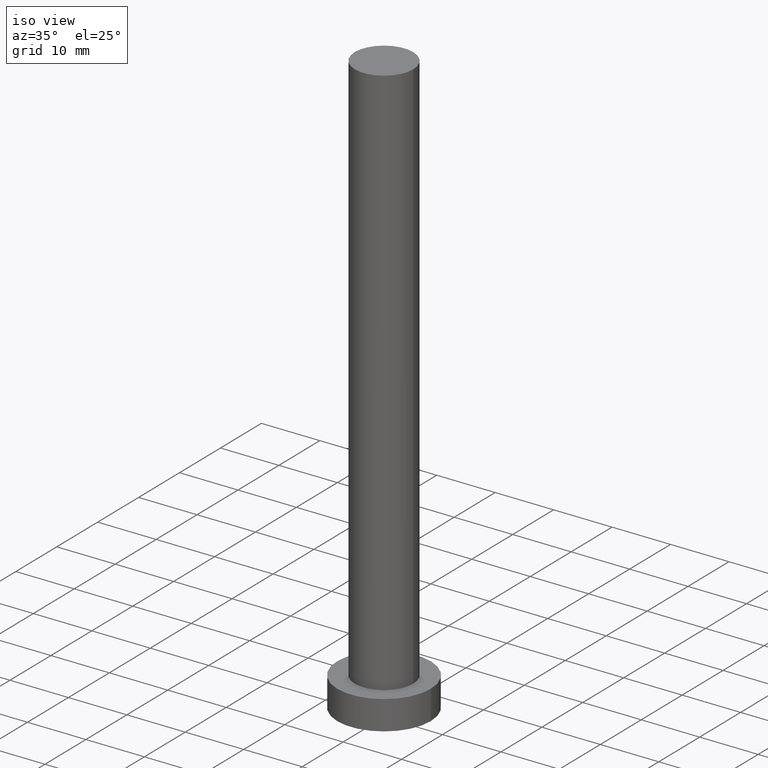
[diagram: clean part render]
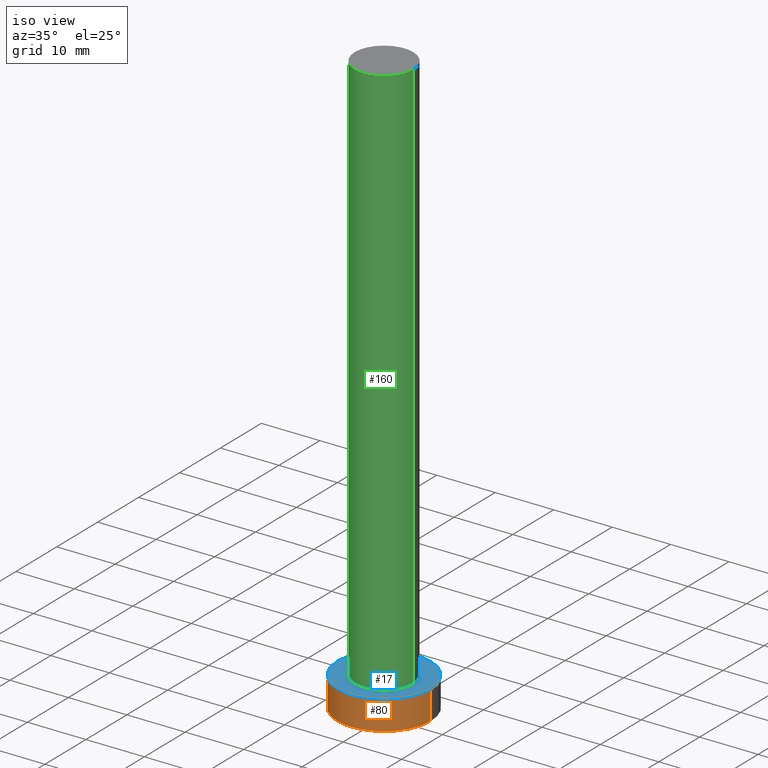
[diagram: same view with three faces highlighted in distinct colors, each labeled with its STEP entity id]
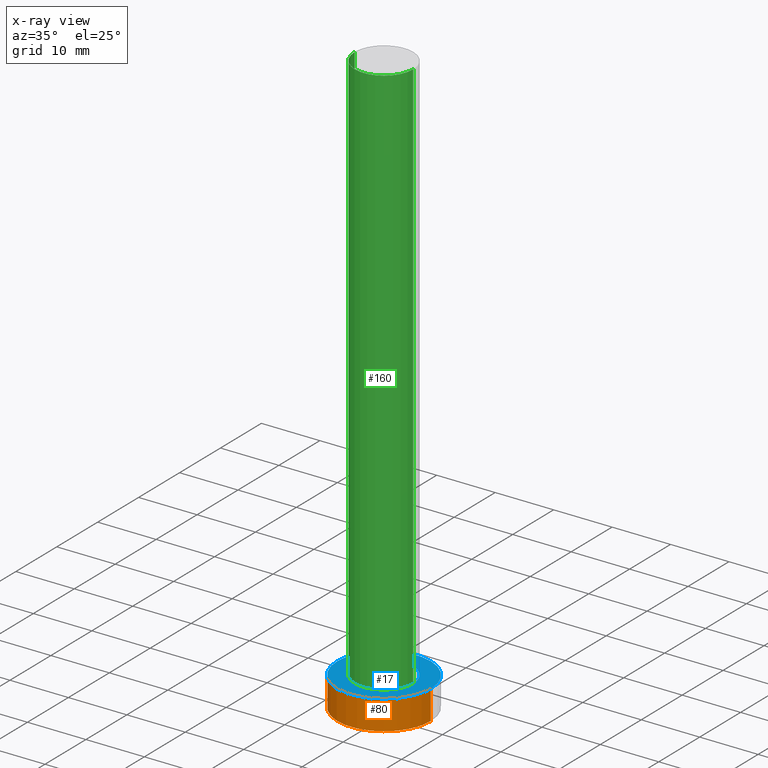
[diagram: x-ray of the same camera — body ghosted, the three highlighted faces saturated]
A machine part, iso view with three faces highlighted in distinct colors.
The next image is the same camera in x-ray (body ghosted, the three faces saturated) — at least one of them is partly hidden behind the body in this view.
Their STEP definitions:

[orange] entity #80 — the highlighted cylindrical surface (partial cylindrical patch) has radius 8 mm, axis along (-0, -0, -1).
#1 = CARTESIAN_POINT ( 'NONE',  ( 8.000000000000000000, 9.797174393178825657E-16, 5.000000000000000000 ) ) ;
#3 = DIRECTION ( 'NONE',  ( 0.000000000000000000, 0.000000000000000000, 1.000000000000000000 ) ) ;
#9 = ORIENTED_EDGE ( 'NONE', *, *, #192, .T. ) ;
#25 = CIRCLE ( 'NONE', #255, 8.000000000000000000 ) ;
#27 = ORIENTED_EDGE ( 'NONE', *, *, #48, .T. ) ;
#35 = AXIS2_PLACEMENT_3D ( 'NONE', #211, #56, #252 ) ;
#38 = CARTESIAN_POINT ( 'NONE',  ( 8.000000000000000000, 9.797174393178825657E-16, 5.000000000000000000 ) ) ;
#41 = EDGE_CURVE ( 'NONE', #210, #194, #117, .T. ) ;
#43 = CARTESIAN_POINT ( 'NONE',  ( 0.000000000000000000, 0.000000000000000000, 5.000000000000000000 ) ) ;
#48 = EDGE_CURVE ( 'NONE', #244, #194, #25, .T. ) ;
#56 = DIRECTION ( 'NONE',  ( -0.000000000000000000, -0.000000000000000000, -1.000000000000000000 ) ) ;
#77 = CARTESIAN_POINT ( 'NONE',  ( 0.000000000000000000, 0.000000000000000000, 0.000000000000000000 ) ) ;
#80 = ADVANCED_FACE ( 'NONE', ( #136 ), #174, .T. ) ;
#100 = LINE ( 'NONE', #182, #141 ) ;
#103 = CARTESIAN_POINT ( 'NONE',  ( -8.000000000000000000, 0.000000000000000000, 5.000000000000000000 ) ) ;
#115 = VECTOR ( 'NONE', #175, 1000.000000000000000 ) ;
#117 = LINE ( 'NONE', #38, #115 ) ;
#121 = DIRECTION ( 'NONE',  ( 1.000000000000000000, 0.000000000000000000, 0.000000000000000000 ) ) ;
#136 = FACE_OUTER_BOUND ( 'NONE', #227, .T. ) ;
#140 = DIRECTION ( 'NONE',  ( 1.000000000000000000, 0.000000000000000000, 0.000000000000000000 ) ) ;
#141 = VECTOR ( 'NONE', #159, 1000.000000000000000 ) ;
#159 = DIRECTION ( 'NONE',  ( -0.000000000000000000, -0.000000000000000000, -1.000000000000000000 ) ) ;
#164 = CARTESIAN_POINT ( 'NONE',  ( 8.000000000000000000, 9.797174393178825657E-16, 0.000000000000000000 ) ) ;
#170 = ORIENTED_EDGE ( 'NONE', *, *, #41, .F. ) ;
#171 = VERTEX_POINT ( 'NONE', #103 ) ;
#172 = ORIENTED_EDGE ( 'NONE', *, *, #232, .F. ) ;
#174 = CYLINDRICAL_SURFACE ( 'NONE', #35, 8.000000000000000000 ) ;
#175 = DIRECTION ( 'NONE',  ( -0.000000000000000000, -0.000000000000000000, -1.000000000000000000 ) ) ;
#182 = CARTESIAN_POINT ( 'NONE',  ( -8.000000000000000000, 0.000000000000000000, 5.000000000000000000 ) ) ;
#192 = EDGE_CURVE ( 'NONE', #171, #244, #100, .T. ) ;
#194 = VERTEX_POINT ( 'NONE', #164 ) ;
#198 = DIRECTION ( 'NONE',  ( 0.000000000000000000, 0.000000000000000000, 1.000000000000000000 ) ) ;
#210 = VERTEX_POINT ( 'NONE', #1 ) ;
#211 = CARTESIAN_POINT ( 'NONE',  ( 0.000000000000000000, 0.000000000000000000, 5.000000000000000000 ) ) ;
#219 = AXIS2_PLACEMENT_3D ( 'NONE', #43, #3, #140 ) ;
#227 = EDGE_LOOP ( 'NONE', ( #170, #172, #9, #27 ) ) ;
#232 = EDGE_CURVE ( 'NONE', #171, #210, #239, .T. ) ;
#239 = CIRCLE ( 'NONE', #219, 8.000000000000000000 ) ;
#240 = CARTESIAN_POINT ( 'NONE',  ( -8.000000000000000000, 0.000000000000000000, 0.000000000000000000 ) ) ;
#244 = VERTEX_POINT ( 'NONE', #240 ) ;
#252 = DIRECTION ( 'NONE',  ( -1.000000000000000000, 0.000000000000000000, 0.000000000000000000 ) ) ;
#255 = AXIS2_PLACEMENT_3D ( 'NONE', #77, #198, #121 ) ;

[blue] entity #17 — the highlighted planar face has unit normal (0, 0, 1).
#1 = CARTESIAN_POINT ( 'NONE',  ( 8.000000000000000000, 9.797174393178825657E-16, 5.000000000000000000 ) ) ;
#3 = DIRECTION ( 'NONE',  ( 0.000000000000000000, 0.000000000000000000, 1.000000000000000000 ) ) ;
#17 = ADVANCED_FACE ( 'NONE', ( #33, #97 ), #150, .T. ) ;
#28 = ORIENTED_EDGE ( 'NONE', *, *, #89, .T. ) ;
#30 = CIRCLE ( 'NONE', #67, 8.000000000000000000 ) ;
#33 = FACE_BOUND ( 'NONE', #189, .T. ) ;
#43 = CARTESIAN_POINT ( 'NONE',  ( 0.000000000000000000, 0.000000000000000000, 5.000000000000000000 ) ) ;
#59 = CARTESIAN_POINT ( 'NONE',  ( 0.000000000000000000, 0.000000000000000000, 5.000000000000000000 ) ) ;
#60 = CARTESIAN_POINT ( 'NONE',  ( 0.000000000000000000, 0.000000000000000000, 5.000000000000000000 ) ) ;
#61 = DIRECTION ( 'NONE',  ( 0.000000000000000000, 0.000000000000000000, 1.000000000000000000 ) ) ;
#67 = AXIS2_PLACEMENT_3D ( 'NONE', #120, #76, #119 ) ;
#76 = DIRECTION ( 'NONE',  ( 0.000000000000000000, 0.000000000000000000, 1.000000000000000000 ) ) ;
#83 = AXIS2_PLACEMENT_3D ( 'NONE', #60, #61, #218 ) ;
#88 = CIRCLE ( 'NONE', #200, 5.000000000000000888 ) ;
#89 = EDGE_CURVE ( 'NONE', #210, #171, #30, .T. ) ;
#95 = VERTEX_POINT ( 'NONE', #248 ) ;
#97 = FACE_OUTER_BOUND ( 'NONE', #114, .T. ) ;
#103 = CARTESIAN_POINT ( 'NONE',  ( -8.000000000000000000, 0.000000000000000000, 5.000000000000000000 ) ) ;
#109 = CIRCLE ( 'NONE', #83, 5.000000000000000888 ) ;
#114 = EDGE_LOOP ( 'NONE', ( #206, #28 ) ) ;
#119 = DIRECTION ( 'NONE',  ( 1.000000000000000000, 0.000000000000000000, 0.000000000000000000 ) ) ;
#120 = CARTESIAN_POINT ( 'NONE',  ( 0.000000000000000000, 0.000000000000000000, 5.000000000000000000 ) ) ;
#131 = VERTEX_POINT ( 'NONE', #180 ) ;
#140 = DIRECTION ( 'NONE',  ( 1.000000000000000000, 0.000000000000000000, 0.000000000000000000 ) ) ;
#143 = CARTESIAN_POINT ( 'NONE',  ( 0.000000000000000000, 0.000000000000000000, 5.000000000000000000 ) ) ;
#145 = ORIENTED_EDGE ( 'NONE', *, *, #205, .F. ) ;
#146 = AXIS2_PLACEMENT_3D ( 'NONE', #59, #249, #231 ) ;
#150 = PLANE ( 'NONE',  #146 ) ;
#167 = ORIENTED_EDGE ( 'NONE', *, *, #202, .F. ) ;
#171 = VERTEX_POINT ( 'NONE', #103 ) ;
#180 = CARTESIAN_POINT ( 'NONE',  ( -5.000000000000000888, 0.000000000000000000, 5.000000000000000000 ) ) ;
#189 = EDGE_LOOP ( 'NONE', ( #167, #145 ) ) ;
#200 = AXIS2_PLACEMENT_3D ( 'NONE', #143, #216, #238 ) ;
#202 = EDGE_CURVE ( 'NONE', #131, #95, #109, .T. ) ;
#205 = EDGE_CURVE ( 'NONE', #95, #131, #88, .T. ) ;
#206 = ORIENTED_EDGE ( 'NONE', *, *, #232, .T. ) ;
#210 = VERTEX_POINT ( 'NONE', #1 ) ;
#216 = DIRECTION ( 'NONE',  ( 0.000000000000000000, 0.000000000000000000, 1.000000000000000000 ) ) ;
#218 = DIRECTION ( 'NONE',  ( 1.000000000000000000, 0.000000000000000000, 0.000000000000000000 ) ) ;
#219 = AXIS2_PLACEMENT_3D ( 'NONE', #43, #3, #140 ) ;
#231 = DIRECTION ( 'NONE',  ( 1.000000000000000000, 0.000000000000000000, -0.000000000000000000 ) ) ;
#232 = EDGE_CURVE ( 'NONE', #171, #210, #239, .T. ) ;
#238 = DIRECTION ( 'NONE',  ( 1.000000000000000000, 0.000000000000000000, 0.000000000000000000 ) ) ;
#239 = CIRCLE ( 'NONE', #219, 8.000000000000000000 ) ;
#248 = CARTESIAN_POINT ( 'NONE',  ( 5.000000000000000888, 6.123233995736767268E-16, 5.000000000000000000 ) ) ;
#249 = DIRECTION ( 'NONE',  ( 0.000000000000000000, 0.000000000000000000, 1.000000000000000000 ) ) ;

[green] entity #160 — the highlighted cylindrical surface (edge-blend (fillet) strip) has radius 5 mm, axis along (-0, -0, -1).
#12 = CARTESIAN_POINT ( 'NONE',  ( 0.000000000000000000, 0.000000000000000000, 100.0000000000000000 ) ) ;
#18 = LINE ( 'NONE', #179, #161 ) ;
#20 = CARTESIAN_POINT ( 'NONE',  ( -5.000000000000000888, 0.000000000000000000, 100.0000000000000000 ) ) ;
#45 = AXIS2_PLACEMENT_3D ( 'NONE', #12, #96, #66 ) ;
#54 = CIRCLE ( 'NONE', #124, 5.000000000000000888 ) ;
#60 = CARTESIAN_POINT ( 'NONE',  ( 0.000000000000000000, 0.000000000000000000, 5.000000000000000000 ) ) ;
#61 = DIRECTION ( 'NONE',  ( 0.000000000000000000, 0.000000000000000000, 1.000000000000000000 ) ) ;
#62 = EDGE_CURVE ( 'NONE', #75, #95, #18, .T. ) ;
#66 = DIRECTION ( 'NONE',  ( -1.000000000000000000, 0.000000000000000000, 0.000000000000000000 ) ) ;
#68 = VERTEX_POINT ( 'NONE', #195 ) ;
#75 = VERTEX_POINT ( 'NONE', #79 ) ;
#79 = CARTESIAN_POINT ( 'NONE',  ( 5.000000000000000888, 6.123233995736767268E-16, 100.0000000000000000 ) ) ;
#82 = DIRECTION ( 'NONE',  ( 0.000000000000000000, 0.000000000000000000, 1.000000000000000000 ) ) ;
#83 = AXIS2_PLACEMENT_3D ( 'NONE', #60, #61, #218 ) ;
#95 = VERTEX_POINT ( 'NONE', #248 ) ;
#96 = DIRECTION ( 'NONE',  ( -0.000000000000000000, -0.000000000000000000, -1.000000000000000000 ) ) ;
#109 = CIRCLE ( 'NONE', #83, 5.000000000000000888 ) ;
#110 = EDGE_LOOP ( 'NONE', ( #247, #190, #147, #168 ) ) ;
#116 = DIRECTION ( 'NONE',  ( 1.000000000000000000, 0.000000000000000000, 0.000000000000000000 ) ) ;
#124 = AXIS2_PLACEMENT_3D ( 'NONE', #134, #82, #116 ) ;
#131 = VERTEX_POINT ( 'NONE', #180 ) ;
#134 = CARTESIAN_POINT ( 'NONE',  ( 0.000000000000000000, 0.000000000000000000, 100.0000000000000000 ) ) ;
#147 = ORIENTED_EDGE ( 'NONE', *, *, #226, .T. ) ;
#153 = DIRECTION ( 'NONE',  ( -0.000000000000000000, -0.000000000000000000, -1.000000000000000000 ) ) ;
#155 = EDGE_CURVE ( 'NONE', #68, #75, #54, .T. ) ;
#156 = FACE_OUTER_BOUND ( 'NONE', #110, .T. ) ;
#160 = ADVANCED_FACE ( 'NONE', ( #156 ), #193, .T. ) ;
#161 = VECTOR ( 'NONE', #153, 1000.000000000000000 ) ;
#168 = ORIENTED_EDGE ( 'NONE', *, *, #202, .T. ) ;
#177 = VECTOR ( 'NONE', #236, 1000.000000000000000 ) ;
#179 = CARTESIAN_POINT ( 'NONE',  ( 5.000000000000000888, 6.123233995736767268E-16, 100.0000000000000000 ) ) ;
#180 = CARTESIAN_POINT ( 'NONE',  ( -5.000000000000000888, 0.000000000000000000, 5.000000000000000000 ) ) ;
#184 = LINE ( 'NONE', #20, #177 ) ;
#190 = ORIENTED_EDGE ( 'NONE', *, *, #155, .F. ) ;
#193 = CYLINDRICAL_SURFACE ( 'NONE', #45, 5.000000000000000888 ) ;
#195 = CARTESIAN_POINT ( 'NONE',  ( -5.000000000000000888, 0.000000000000000000, 100.0000000000000000 ) ) ;
#202 = EDGE_CURVE ( 'NONE', #131, #95, #109, .T. ) ;
#218 = DIRECTION ( 'NONE',  ( 1.000000000000000000, 0.000000000000000000, 0.000000000000000000 ) ) ;
#226 = EDGE_CURVE ( 'NONE', #68, #131, #184, .T. ) ;
#236 = DIRECTION ( 'NONE',  ( -0.000000000000000000, -0.000000000000000000, -1.000000000000000000 ) ) ;
#247 = ORIENTED_EDGE ( 'NONE', *, *, #62, .F. ) ;
#248 = CARTESIAN_POINT ( 'NONE',  ( 5.000000000000000888, 6.123233995736767268E-16, 5.000000000000000000 ) ) ;